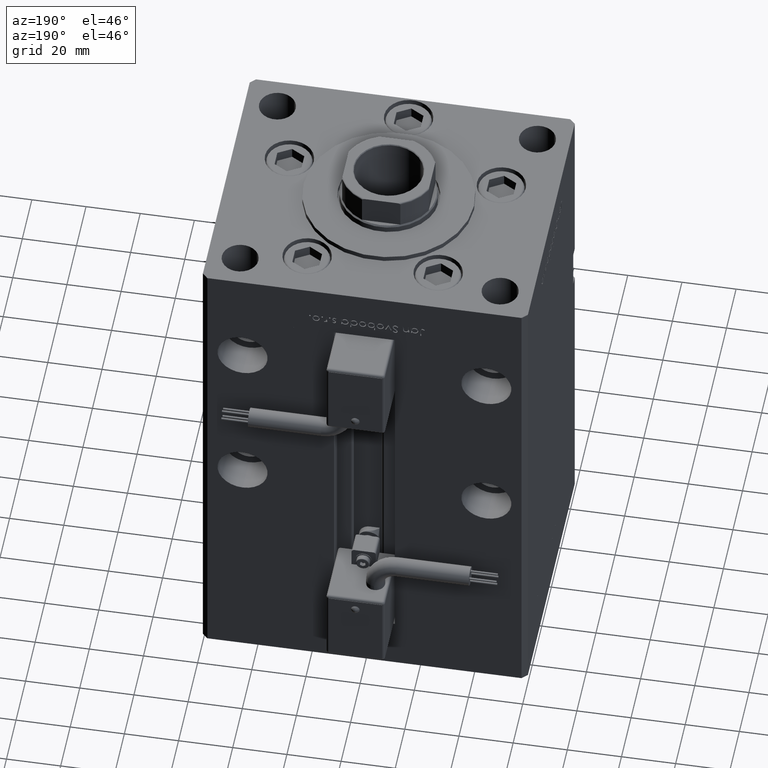
[diagram: clean part render]
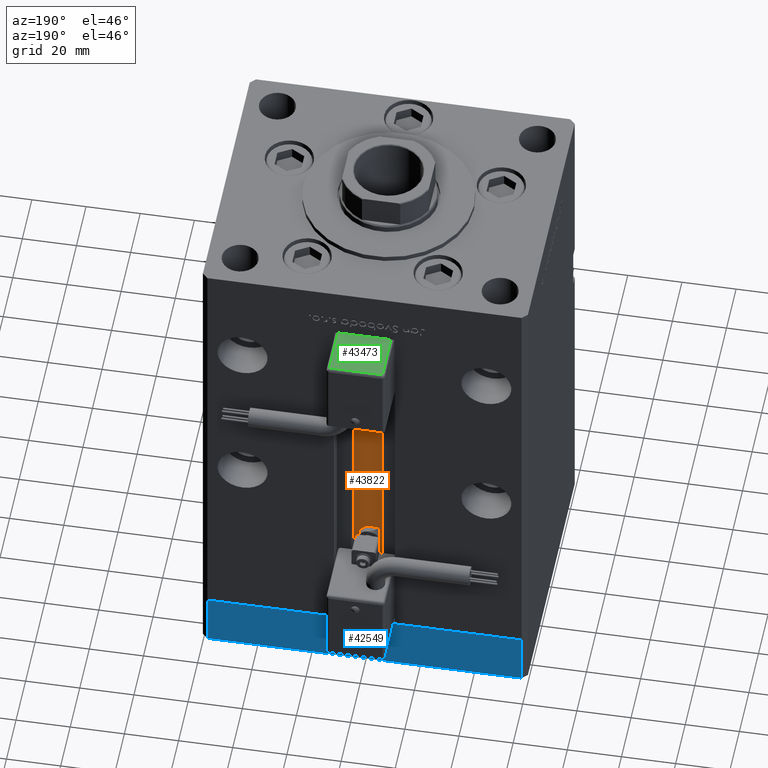
[diagram: same view with three faces highlighted in distinct colors, each labeled with its STEP entity id]
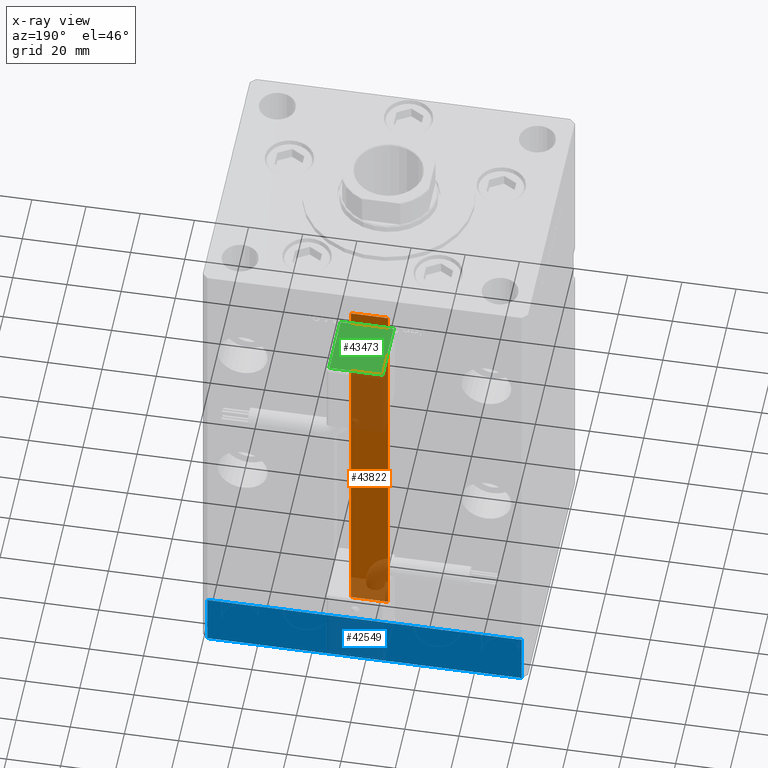
[diagram: x-ray of the same camera — body ghosted, the three highlighted faces saturated]
A machine part, auxiliary view with three faces highlighted in distinct colors.
The next image is the same camera in x-ray (body ghosted, the three faces saturated) — at least one of them is partly hidden behind the body in this view.
Their STEP definitions:

[orange] entity #43822 — the highlighted planar face has unit normal (0, -1, 0).
#846 = DIRECTION ( 'NONE',  ( 0.000000000000000000, -1.000000000000000000, -0.000000000000000000 ) ) ;
#1469 = DIRECTION ( 'NONE',  ( -1.000000000000000000, 0.000000000000000000, 0.000000000000000000 ) ) ;
#4112 = VERTEX_POINT ( 'NONE', #15378 ) ;
#5545 = EDGE_CURVE ( 'NONE', #19216, #4112, #41567, .T. ) ;
#5974 = EDGE_LOOP ( 'NONE', ( #26633, #49860, #24911, #23602 ) ) ;
#7702 = CARTESIAN_POINT ( 'NONE',  ( -6.876153656360465050, 40.49999999999987210, 0.000000000000000000 ) ) ;
#11133 = LINE ( 'NONE', #7702, #21784 ) ;
#14579 = CARTESIAN_POINT ( 'NONE',  ( 6.876153656360465050, 40.49999999999987210, 148.5000000000000000 ) ) ;
#14799 = VERTEX_POINT ( 'NONE', #29311 ) ;
#15378 = CARTESIAN_POINT ( 'NONE',  ( -6.876153656360465050, 40.49999999999987210, 148.5000000000000000 ) ) ;
#16995 = AXIS2_PLACEMENT_3D ( 'NONE', #53176, #846, #36399 ) ;
#19216 = VERTEX_POINT ( 'NONE', #14579 ) ;
#20301 = VERTEX_POINT ( 'NONE', #24259 ) ;
#21784 = VECTOR ( 'NONE', #25325, 1000.000000000000000 ) ;
#22583 = LINE ( 'NONE', #44491, #50539 ) ;
#23602 = ORIENTED_EDGE ( 'NONE', *, *, #5545, .F. ) ;
#24259 = CARTESIAN_POINT ( 'NONE',  ( 6.876153656360465050, 40.49999999999987210, 0.000000000000000000 ) ) ;
#24911 = ORIENTED_EDGE ( 'NONE', *, *, #33943, .T. ) ;
#25325 = DIRECTION ( 'NONE',  ( -0.000000000000000000, -0.000000000000000000, 1.000000000000000000 ) ) ;
#26633 = ORIENTED_EDGE ( 'NONE', *, *, #42286, .F. ) ;
#27016 = PLANE ( 'NONE',  #16995 ) ;
#29311 = CARTESIAN_POINT ( 'NONE',  ( -6.876153656360465050, 40.49999999999987210, 0.000000000000000000 ) ) ;
#33891 = VECTOR ( 'NONE', #1469, 1000.000000000000000 ) ;
#33943 = EDGE_CURVE ( 'NONE', #14799, #4112, #11133, .T. ) ;
#36136 = DIRECTION ( 'NONE',  ( 1.000000000000000000, -0.000000000000000000, -0.000000000000000000 ) ) ;
#36399 = DIRECTION ( 'NONE',  ( 0.000000000000000000, 0.000000000000000000, -1.000000000000000000 ) ) ;
#40126 = CARTESIAN_POINT ( 'NONE',  ( 6.876153656360465050, 40.49999999999987210, 0.000000000000000000 ) ) ;
#41279 = CARTESIAN_POINT ( 'NONE',  ( 0.000000000000000000, 40.49999999999987210, 148.5000000000000000 ) ) ;
#41567 = LINE ( 'NONE', #41279, #33891 ) ;
#42286 = EDGE_CURVE ( 'NONE', #20301, #19216, #22583, .T. ) ;
#43822 = ADVANCED_FACE ( 'NONE', ( #45212 ), #27016, .F. ) ;
#44491 = CARTESIAN_POINT ( 'NONE',  ( 6.876153656360465050, 40.49999999999987210, 0.000000000000000000 ) ) ;
#45212 = FACE_OUTER_BOUND ( 'NONE', #5974, .T. ) ;
#45415 = VECTOR ( 'NONE', #36136, 1000.000000000000000 ) ;
#49860 = ORIENTED_EDGE ( 'NONE', *, *, #54881, .F. ) ;
#50539 = VECTOR ( 'NONE', #53577, 1000.000000000000000 ) ;
#52914 = LINE ( 'NONE', #40126, #45415 ) ;
#53176 = CARTESIAN_POINT ( 'NONE',  ( 6.876153656360465050, 40.49999999999987210, 0.000000000000000000 ) ) ;
#53577 = DIRECTION ( 'NONE',  ( -0.000000000000000000, -0.000000000000000000, 1.000000000000000000 ) ) ;
#54881 = EDGE_CURVE ( 'NONE', #14799, #20301, #52914, .T. ) ;

[blue] entity #42549 — the highlighted planar face has unit normal (-0, 1, 0).
#589 = AXIS2_PLACEMENT_3D ( 'NONE', #15102, #20211, #51748 ) ;
#1800 = VECTOR ( 'NONE', #15642, 1000.000000000000000 ) ;
#1919 = VERTEX_POINT ( 'NONE', #35846 ) ;
#2202 = EDGE_LOOP ( 'NONE', ( #50452, #50608, #25303, #6033 ) ) ;
#2862 = FACE_OUTER_BOUND ( 'NONE', #2202, .T. ) ;
#6033 = ORIENTED_EDGE ( 'NONE', *, *, #42436, .T. ) ;
#8756 = VECTOR ( 'NONE', #10836, 1000.000000000000000 ) ;
#10836 = DIRECTION ( 'NONE',  ( 0.000000000000000000, 0.000000000000000000, 1.000000000000000000 ) ) ;
#11503 = LINE ( 'NONE', #46743, #33215 ) ;
#15102 = CARTESIAN_POINT ( 'NONE',  ( 57.99999999999993605, 51.00000000000000711, -20.00000000000000000 ) ) ;
#15642 = DIRECTION ( 'NONE',  ( -1.000000000000000000, -2.392722035830079958E-16, 0.000000000000000000 ) ) ;
#15758 = CARTESIAN_POINT ( 'NONE',  ( 57.99999999999993605, 51.00000000000000711, 0.000000000000000000 ) ) ;
#17107 = DIRECTION ( 'NONE',  ( -1.000000000000000000, -2.392722035830079958E-16, 0.000000000000000000 ) ) ;
#17520 = VERTEX_POINT ( 'NONE', #35953 ) ;
#19111 = EDGE_CURVE ( 'NONE', #17520, #43299, #11503, .T. ) ;
#20211 = DIRECTION ( 'NONE',  ( -2.392722035830079958E-16, 1.000000000000000000, 0.000000000000000000 ) ) ;
#24465 = CARTESIAN_POINT ( 'NONE',  ( 57.99999999999993605, 51.00000000000000711, -20.00000000000000000 ) ) ;
#25139 = DIRECTION ( 'NONE',  ( 0.000000000000000000, 0.000000000000000000, 1.000000000000000000 ) ) ;
#25303 = ORIENTED_EDGE ( 'NONE', *, *, #54926, .T. ) ;
#28847 = EDGE_CURVE ( 'NONE', #43299, #1919, #39301, .T. ) ;
#33215 = VECTOR ( 'NONE', #25139, 1000.000000000000000 ) ;
#35846 = CARTESIAN_POINT ( 'NONE',  ( -57.99999999999999289, 50.99999999999997868, 0.000000000000000000 ) ) ;
#35953 = CARTESIAN_POINT ( 'NONE',  ( 57.99999999999993605, 51.00000000000000711, -20.00000000000000000 ) ) ;
#36723 = PLANE ( 'NONE',  #589 ) ;
#36977 = LINE ( 'NONE', #24465, #1800 ) ;
#38733 = CARTESIAN_POINT ( 'NONE',  ( 57.99999999999993605, 51.00000000000000711, 0.000000000000000000 ) ) ;
#39301 = LINE ( 'NONE', #38733, #39749 ) ;
#39433 = VERTEX_POINT ( 'NONE', #44589 ) ;
#39749 = VECTOR ( 'NONE', #17107, 1000.000000000000000 ) ;
#41268 = LINE ( 'NONE', #45544, #8756 ) ;
#42436 = EDGE_CURVE ( 'NONE', #39433, #1919, #41268, .T. ) ;
#42549 = ADVANCED_FACE ( 'NONE', ( #2862 ), #36723, .T. ) ;
#43299 = VERTEX_POINT ( 'NONE', #15758 ) ;
#44589 = CARTESIAN_POINT ( 'NONE',  ( -57.99999999999999289, 50.99999999999997868, -20.00000000000000000 ) ) ;
#45544 = CARTESIAN_POINT ( 'NONE',  ( -57.99999999999999289, 50.99999999999997868, -20.00000000000000000 ) ) ;
#46743 = CARTESIAN_POINT ( 'NONE',  ( 57.99999999999993605, 51.00000000000000711, -20.00000000000000000 ) ) ;
#50452 = ORIENTED_EDGE ( 'NONE', *, *, #28847, .F. ) ;
#50608 = ORIENTED_EDGE ( 'NONE', *, *, #19111, .F. ) ;
#51748 = DIRECTION ( 'NONE',  ( -1.000000000000000000, -2.392722035830079958E-16, 0.000000000000000000 ) ) ;
#54926 = EDGE_CURVE ( 'NONE', #17520, #39433, #36977, .T. ) ;

[green] entity #43473 — the highlighted planar face has unit normal (0, 0, -1).
#5473 = DIRECTION ( 'NONE',  ( 0.000000000000000000, -1.000000000000000000, -1.400000000000000069E-16 ) ) ;
#5651 = DIRECTION ( 'NONE',  ( -3.108624468950000014E-32, 1.000000000000000000, 1.400000000000000069E-16 ) ) ;
#6315 = PLANE ( 'NONE',  #15182 ) ;
#7618 = CARTESIAN_POINT ( 'NONE',  ( -9.799999999999998934, 51.50000000000000000, -25.00000000000000000 ) ) ;
#8015 = CARTESIAN_POINT ( 'NONE',  ( 9.799999999999998934, 50.50000000000000000, -25.00000000000000000 ) ) ;
#12446 = ORIENTED_EDGE ( 'NONE', *, *, #16954, .T. ) ;
#12916 = VERTEX_POINT ( 'NONE', #41970 ) ;
#13365 = VECTOR ( 'NONE', #46789, 1000.000000000000000 ) ;
#14203 = VECTOR ( 'NONE', #25239, 1000.000000000000000 ) ;
#15182 = AXIS2_PLACEMENT_3D ( 'NONE', #53249, #41289, #5473 ) ;
#15798 = LINE ( 'NONE', #21175, #22557 ) ;
#16954 = EDGE_CURVE ( 'NONE', #53471, #23961, #22146, .T. ) ;
#17257 = LINE ( 'NONE', #7618, #14203 ) ;
#17690 = VECTOR ( 'NONE', #5651, 1000.000000000000000 ) ;
#20928 = EDGE_LOOP ( 'NONE', ( #31313, #41136, #12446, #38771 ) ) ;
#21175 = CARTESIAN_POINT ( 'NONE',  ( 10.80000000000000071, 50.50000000000000000, -25.00000000000000000 ) ) ;
#22146 = LINE ( 'NONE', #39790, #17690 ) ;
#22557 = VECTOR ( 'NONE', #46229, 1000.000000000000000 ) ;
#23961 = VERTEX_POINT ( 'NONE', #8015 ) ;
#25239 = DIRECTION ( 'NONE',  ( 3.108624468950000014E-32, -1.000000000000000000, -1.400000000000000069E-16 ) ) ;
#25342 = EDGE_CURVE ( 'NONE', #12916, #51751, #17257, .T. ) ;
#25741 = CARTESIAN_POINT ( 'NONE',  ( 10.80000000000000071, 27.00000000000000000, -25.00000000000000000 ) ) ;
#31313 = ORIENTED_EDGE ( 'NONE', *, *, #25342, .T. ) ;
#38771 = ORIENTED_EDGE ( 'NONE', *, *, #51026, .T. ) ;
#39790 = CARTESIAN_POINT ( 'NONE',  ( 9.799999999999998934, 51.50000000000000000, -25.00000000000000000 ) ) ;
#41136 = ORIENTED_EDGE ( 'NONE', *, *, #47588, .T. ) ;
#41289 = DIRECTION ( 'NONE',  ( 2.220446049250000002E-16, 1.400000000000000069E-16, -1.000000000000000000 ) ) ;
#41772 = CARTESIAN_POINT ( 'NONE',  ( -9.799999999999998934, 27.00000000000000000, -25.00000000000000000 ) ) ;
#41970 = CARTESIAN_POINT ( 'NONE',  ( -9.799999999999998934, 50.50000000000000000, -25.00000000000000000 ) ) ;
#43473 = ADVANCED_FACE ( 'NONE', ( #44443 ), #6315, .F. ) ;
#44443 = FACE_OUTER_BOUND ( 'NONE', #20928, .T. ) ;
#46229 = DIRECTION ( 'NONE',  ( -1.000000000000000000, 0.000000000000000000, -2.220446049250000002E-16 ) ) ;
#46255 = CARTESIAN_POINT ( 'NONE',  ( 9.799999999999998934, 27.00000000000000000, -25.00000000000000000 ) ) ;
#46789 = DIRECTION ( 'NONE',  ( 1.000000000000000000, 0.000000000000000000, 2.220446049250000002E-16 ) ) ;
#47588 = EDGE_CURVE ( 'NONE', #51751, #53471, #50792, .T. ) ;
#50792 = LINE ( 'NONE', #25741, #13365 ) ;
#51026 = EDGE_CURVE ( 'NONE', #23961, #12916, #15798, .T. ) ;
#51751 = VERTEX_POINT ( 'NONE', #41772 ) ;
#53249 = CARTESIAN_POINT ( 'NONE',  ( 10.80000000000000071, 51.50000000000000000, -25.00000000000000000 ) ) ;
#53471 = VERTEX_POINT ( 'NONE', #46255 ) ;